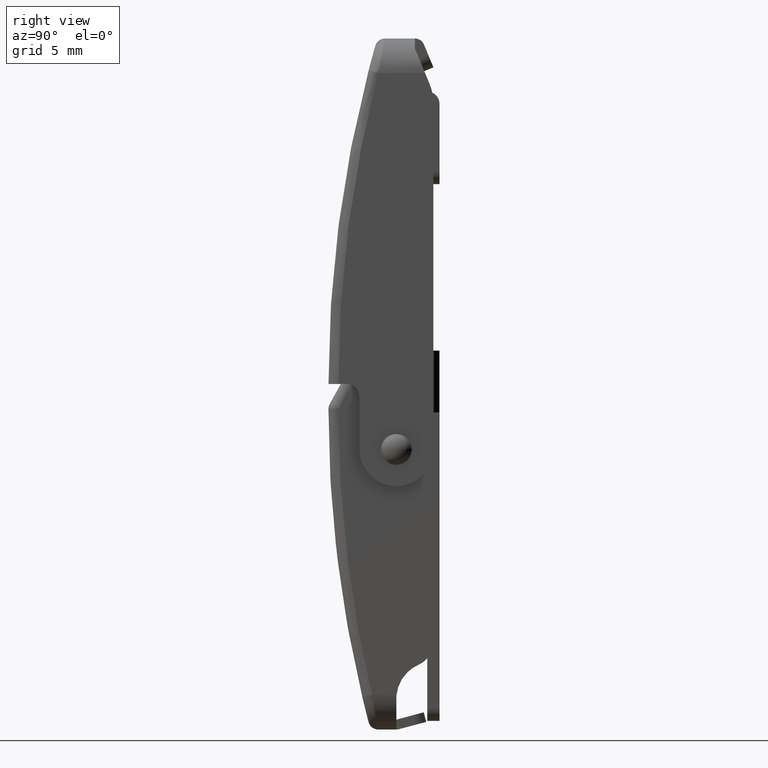
[diagram: clean part render]
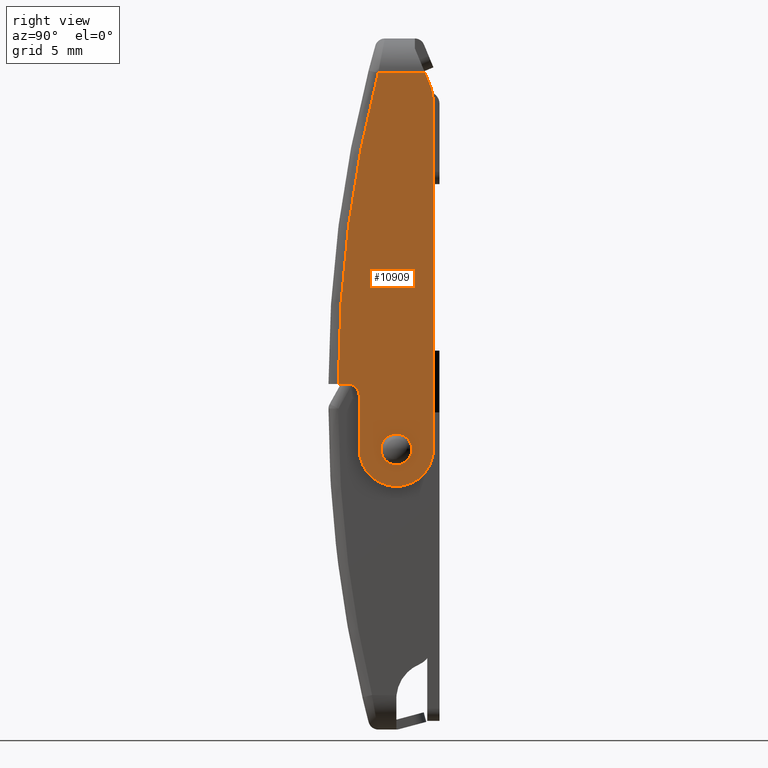
[diagram: same view with one face highlighted and labeled with its STEP entity id]
A machine part, right view. The second image highlights one B-rep face of the part: STEP entity #10909.
In plain terms, the highlighted face is a freeform B-spline surface patch.
Its self-contained STEP definition (entity closure, byte-faithful):
#9112=CARTESIAN_POINT('',(7.800000000000139,-3.499999999998890,5.049999999999799));
#9113=VERTEX_POINT('',#9112);
#9114=CARTESIAN_POINT('',(7.800000000000139,-4.546763200417954,4.082382050523185));
#9115=VERTEX_POINT('',#9114);
#9116=CARTESIAN_POINT('',(7.800000000000139,-3.499999999998890,5.049999999999799));
#9117=CARTESIAN_POINT('',(7.800000000000140,-4.470610016222991,5.049999999999800));
#9118=CARTESIAN_POINT('',(7.800000000000139,-4.546763200417954,4.082382050523185));
#9126=(BOUNDED_CURVE()B_SPLINE_CURVE(2,(#9116,#9117,#9118),.UNSPECIFIED.,.F.,.U.)B_SPLINE_CURVE_WITH_KNOTS((3,3),(0.0,0.236331300629771),.UNSPECIFIED.)CURVE()GEOMETRIC_REPRESENTATION_ITEM()RATIONAL_B_SPLINE_CURVE((1.0,0.723120658608707,0.969723356165563))REPRESENTATION_ITEM(''));
#9127=EDGE_CURVE('',#9113,#9115,#9126,.T.);
#9168=CARTESIAN_POINT('',(7.800000000000139,-2.453236799579826,3.917617949476415));
#9169=VERTEX_POINT('',#9168);
#9175=CARTESIAN_POINT('',(7.800000000000139,-2.453236799579826,3.917617949476415));
#9176=CARTESIAN_POINT('',(7.800000000000139,-2.449999999998890,3.958745387632558));
#9177=CARTESIAN_POINT('',(7.800000000000139,-2.449999999998890,3.999999999999800));
#9178=CARTESIAN_POINT('',(7.800000000000140,-2.449999999998890,5.049999999999799));
#9179=CARTESIAN_POINT('',(7.800000000000139,-3.499999999998890,5.049999999999799));
#9187=(BOUNDED_CURVE()B_SPLINE_CURVE(2,(#9175,#9176,#9177,#9178,#9179),.UNSPECIFIED.,.F.,.U.)B_SPLINE_CURVE_WITH_KNOTS((3,2,3),(0.736331300629771,0.750000000000000,1.0),.UNSPECIFIED.)CURVE()GEOMETRIC_REPRESENTATION_ITEM()RATIONAL_B_SPLINE_CURVE((0.969723356165563,0.983986122577841,1.0,0.707106781186548,1.0))REPRESENTATION_ITEM(''));
#9188=EDGE_CURVE('',#9169,#9113,#9187,.T.);
#9211=CARTESIAN_POINT('',(7.800000000000139,-3.499999999998890,2.949999999999800));
#9212=VERTEX_POINT('',#9211);
#9213=CARTESIAN_POINT('',(7.800000000000139,-4.546763200417954,4.082382050523185));
#9214=CARTESIAN_POINT('',(7.800000000000139,-4.549999999998891,4.041254612367043));
#9215=CARTESIAN_POINT('',(7.800000000000139,-4.549999999998890,3.999999999999800));
#9216=CARTESIAN_POINT('',(7.800000000000140,-4.549999999998889,2.949999999999800));
#9217=CARTESIAN_POINT('',(7.800000000000139,-3.499999999998890,2.949999999999800));
#9225=(BOUNDED_CURVE()B_SPLINE_CURVE(2,(#9213,#9214,#9215,#9216,#9217),.UNSPECIFIED.,.F.,.U.)B_SPLINE_CURVE_WITH_KNOTS((3,2,3),(0.236331300629771,0.250000000000000,0.500000000000000),.UNSPECIFIED.)CURVE()GEOMETRIC_REPRESENTATION_ITEM()RATIONAL_B_SPLINE_CURVE((0.969723356165563,0.983986122577841,1.0,0.707106781186548,1.0))REPRESENTATION_ITEM(''));
#9226=EDGE_CURVE('',#9115,#9212,#9225,.T.);
#9228=CARTESIAN_POINT('',(7.800000000000139,-3.499999999998890,2.949999999999800));
#9229=CARTESIAN_POINT('',(7.800000000000140,-2.529389983774790,2.949999999999800));
#9230=CARTESIAN_POINT('',(7.800000000000139,-2.453236799579826,3.917617949476415));
#9238=(BOUNDED_CURVE()B_SPLINE_CURVE(2,(#9228,#9229,#9230),.UNSPECIFIED.,.F.,.U.)B_SPLINE_CURVE_WITH_KNOTS((3,3),(0.500000000000000,0.736331300629771),.UNSPECIFIED.)CURVE()GEOMETRIC_REPRESENTATION_ITEM()RATIONAL_B_SPLINE_CURVE((1.0,0.723120658608707,0.969723356165563))REPRESENTATION_ITEM(''));
#9239=EDGE_CURVE('',#9212,#9169,#9238,.T.);
#9510=CARTESIAN_POINT('',(7.800000000000099,-4.972723429691510,34.500000000003247));
#9511=VERTEX_POINT('',#9510);
#9667=CARTESIAN_POINT('',(7.800000000000139,-8.199999999998640,9.299999999999800));
#9668=VERTEX_POINT('',#9667);
#9684=CARTESIAN_POINT('',(7.800000000000099,-4.972723429691476,34.500000000003212));
#9685=CARTESIAN_POINT('',(7.800000000000099,-8.199999999998598,22.106653056772373));
#9686=CARTESIAN_POINT('',(7.800000000000139,-8.199999999998640,9.299999999999800));
#9694=(BOUNDED_CURVE()B_SPLINE_CURVE(2,(#9684,#9685,#9686),.UNSPECIFIED.,.F.,.U.)CURVE()GEOMETRIC_REPRESENTATION_ITEM()QUASI_UNIFORM_CURVE()RATIONAL_B_SPLINE_CURVE((1.0,0.991898995436766,1.0))REPRESENTATION_ITEM(''));
#9695=EDGE_CURVE('',#9511,#9668,#9694,.T.);
#10232=CARTESIAN_POINT('',(7.800000000000139,-1.171572875251380,34.500000000003553));
#10233=VERTEX_POINT('',#10232);
#10234=CARTESIAN_POINT('',(7.800000000000139,-1.171572875251380,34.500000000003553));
#10235=CARTESIAN_POINT('',(7.800000000000099,-4.972723429691510,34.500000000003247));
#10236=QUASI_UNIFORM_CURVE('',1,(#10234,#10235),.UNSPECIFIED.,.F.,.U.);
#10237=EDGE_CURVE('',#10233,#9511,#10236,.T.);
#10821=CARTESIAN_POINT('',(7.800000000000099,-8.584614840512934,36.173324935074227));
#10822=CARTESIAN_POINT('',(7.800000000000099,-0.115384815216076,36.173324935074227));
#10823=CARTESIAN_POINT('',(7.800000000000099,-8.584614840512934,-0.673325833610831));
#10824=CARTESIAN_POINT('',(7.800000000000099,-0.115384815216076,-0.673325833610831));
#10825=B_SPLINE_SURFACE_WITH_KNOTS('',1,1,((#10821,#10823),(#10822,#10824)),.UNSPECIFIED.,.F.,.F.,.U.,(2,2),(2,2),(0.0,8.469230025296859),(0.0,36.846650768685059),.UNSPECIFIED.);
#10826=ORIENTED_EDGE('',*,*,#10237,.T.);
#10827=ORIENTED_EDGE('',*,*,#9695,.T.);
#10828=CARTESIAN_POINT('',(7.800000000000139,-7.499999999996899,9.299999999999999));
#10829=VERTEX_POINT('',#10828);
#10830=CARTESIAN_POINT('',(7.800000000000139,-7.499999999996899,9.299999999999999));
#10831=CARTESIAN_POINT('',(7.800000000000139,-8.199999999998640,9.299999999999800));
#10832=QUASI_UNIFORM_CURVE('',1,(#10830,#10831),.UNSPECIFIED.,.F.,.U.);
#10833=EDGE_CURVE('',#10829,#9668,#10832,.T.);
#10834=ORIENTED_EDGE('',*,*,#10833,.F.);
#10835=CARTESIAN_POINT('',(7.800000000000139,-6.499999999999119,8.300000000000001));
#10836=VERTEX_POINT('',#10835);
#10837=CARTESIAN_POINT('',(7.800000000000139,-6.499999999999119,8.300000000000001));
#10838=CARTESIAN_POINT('',(7.800000000000140,-6.499999999996899,9.299999999999999));
#10839=CARTESIAN_POINT('',(7.800000000000139,-7.499999999996899,9.299999999999999));
#10847=(BOUNDED_CURVE()B_SPLINE_CURVE(2,(#10837,#10838,#10839),.UNSPECIFIED.,.F.,.U.)CURVE()GEOMETRIC_REPRESENTATION_ITEM()QUASI_UNIFORM_CURVE()RATIONAL_B_SPLINE_CURVE((1.0,0.707106781186548,1.0))REPRESENTATION_ITEM(''));
#10848=EDGE_CURVE('',#10836,#10829,#10847,.T.);
#10849=ORIENTED_EDGE('',*,*,#10848,.F.);
#10850=CARTESIAN_POINT('',(7.800000000000139,-6.499999999998890,3.999999999999800));
#10851=VERTEX_POINT('',#10850);
#10852=CARTESIAN_POINT('',(7.800000000000139,-6.499999999998890,3.999999999999800));
#10853=CARTESIAN_POINT('',(7.800000000000139,-6.499999999999119,8.300000000000001));
#10854=QUASI_UNIFORM_CURVE('',1,(#10852,#10853),.UNSPECIFIED.,.F.,.U.);
#10855=EDGE_CURVE('',#10851,#10836,#10854,.T.);
#10856=ORIENTED_EDGE('',*,*,#10855,.F.);
#10857=CARTESIAN_POINT('',(7.800000000000139,-0.499999999997299,3.999999999994630));
#10858=VERTEX_POINT('',#10857);
#10859=CARTESIAN_POINT('',(7.800000000000139,-6.499999999998891,3.999999999999800));
#10860=CARTESIAN_POINT('',(7.800000000000139,-6.499999999998892,1.000000000002385));
#10861=CARTESIAN_POINT('',(7.800000000000139,-3.500000000001475,0.999999999999800));
#10862=CARTESIAN_POINT('',(7.800000000000139,-0.500000000004060,0.999999999997214));
#10863=CARTESIAN_POINT('',(7.800000000000139,-0.499999999997299,3.999999999994630));
#10871=(BOUNDED_CURVE()B_SPLINE_CURVE(2,(#10859,#10860,#10861,#10862,#10863),.UNSPECIFIED.,.F.,.U.)B_SPLINE_CURVE_WITH_KNOTS((3,2,3),(0.0,0.500000000000000,1.0),.UNSPECIFIED.)CURVE()GEOMETRIC_REPRESENTATION_ITEM()RATIONAL_B_SPLINE_CURVE((1.0,0.707106781186852,1.0,0.707106781186852,1.0))REPRESENTATION_ITEM(''));
#10872=EDGE_CURVE('',#10851,#10858,#10871,.T.);
#10873=ORIENTED_EDGE('',*,*,#10872,.T.);
#10874=CARTESIAN_POINT('',(7.800000000000139,-0.499999999947192,32.083030186803697));
#10875=VERTEX_POINT('',#10874);
#10876=CARTESIAN_POINT('',(7.800000000000139,-0.499999999947192,32.083030186803697));
#10877=CARTESIAN_POINT('',(7.800000000000139,-0.499999999997299,3.999999999994630));
#10878=QUASI_UNIFORM_CURVE('',1,(#10876,#10877),.UNSPECIFIED.,.F.,.U.);
#10879=EDGE_CURVE('',#10875,#10858,#10878,.T.);
#10880=ORIENTED_EDGE('',*,*,#10879,.F.);
#10881=CARTESIAN_POINT('',(7.800000000000139,-0.804481869902105,33.613763916264212));
#10882=VERTEX_POINT('',#10881);
#10883=CARTESIAN_POINT('',(7.800000000000139,-0.499999999947189,32.083030186803697));
#10884=CARTESIAN_POINT('',(7.800000000000140,-0.499999999947189,32.878679656322412));
#10885=CARTESIAN_POINT('',(7.800000000000139,-0.804481869902100,33.613763916264212));
#10893=(BOUNDED_CURVE()B_SPLINE_CURVE(2,(#10883,#10884,#10885),.UNSPECIFIED.,.F.,.U.)CURVE()GEOMETRIC_REPRESENTATION_ITEM()QUASI_UNIFORM_CURVE()RATIONAL_B_SPLINE_CURVE((1.0,0.980785280403227,1.0))REPRESENTATION_ITEM(''));
#10894=EDGE_CURVE('',#10875,#10882,#10893,.T.);
#10895=ORIENTED_EDGE('',*,*,#10894,.T.);
#10896=CARTESIAN_POINT('',(7.800000000000139,-1.171572875251380,34.500000000003553));
#10897=CARTESIAN_POINT('',(7.800000000000139,-0.804481869902105,33.613763916264212));
#10898=QUASI_UNIFORM_CURVE('',1,(#10896,#10897),.UNSPECIFIED.,.F.,.U.);
#10899=EDGE_CURVE('',#10233,#10882,#10898,.T.);
#10900=ORIENTED_EDGE('',*,*,#10899,.F.);
#10901=EDGE_LOOP('',(#10826,#10827,#10834,#10849,#10856,#10873,#10880,#10895,#10900));
#10902=FACE_OUTER_BOUND('',#10901,.T.);
#10903=ORIENTED_EDGE('',*,*,#9239,.F.);
#10904=ORIENTED_EDGE('',*,*,#9226,.F.);
#10905=ORIENTED_EDGE('',*,*,#9127,.F.);
#10906=ORIENTED_EDGE('',*,*,#9188,.F.);
#10907=EDGE_LOOP('',(#10903,#10904,#10905,#10906));
#10908=FACE_BOUND('',#10907,.T.);
#10909=ADVANCED_FACE('',(#10902,#10908),#10825,.F.);